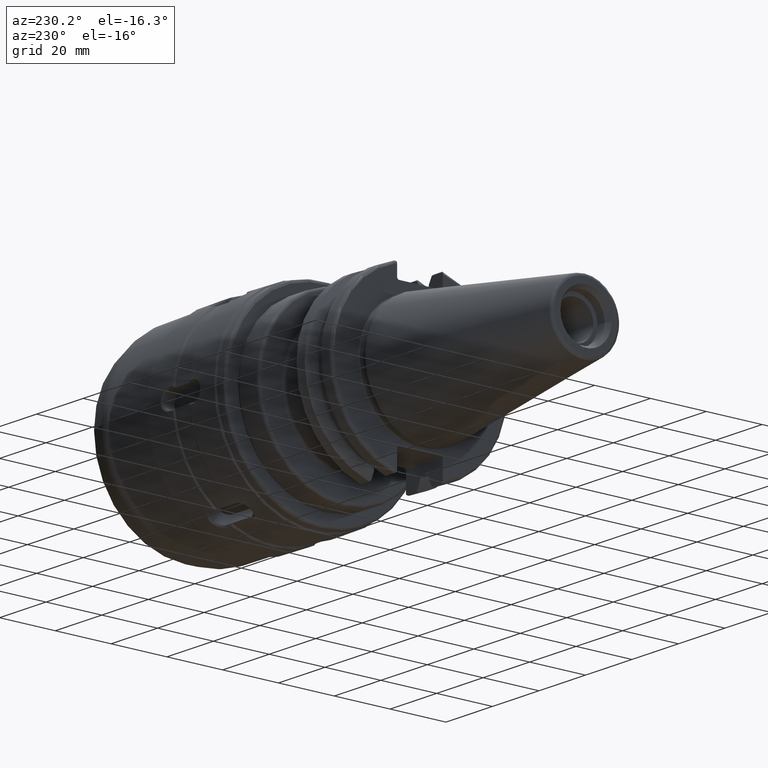
[diagram: clean part render]
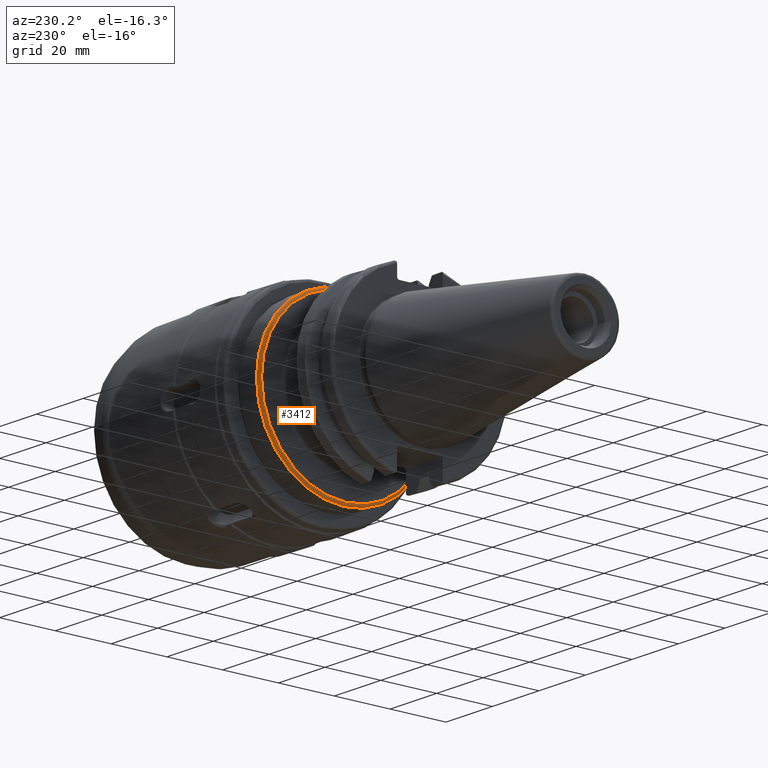
[diagram: same view with one face highlighted and labeled with its STEP entity id]
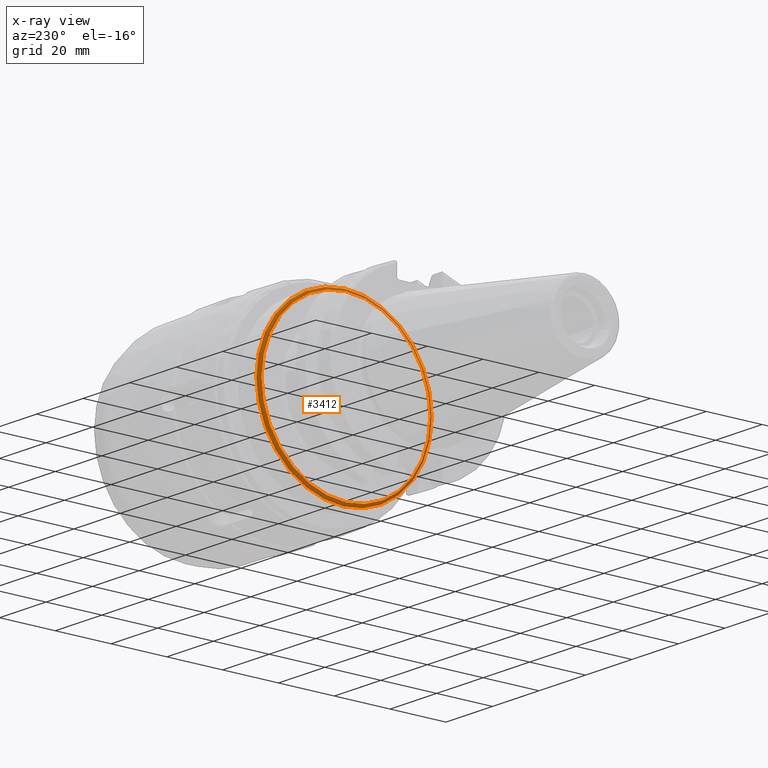
[diagram: x-ray of the same camera — body ghosted, the highlighted face saturated]
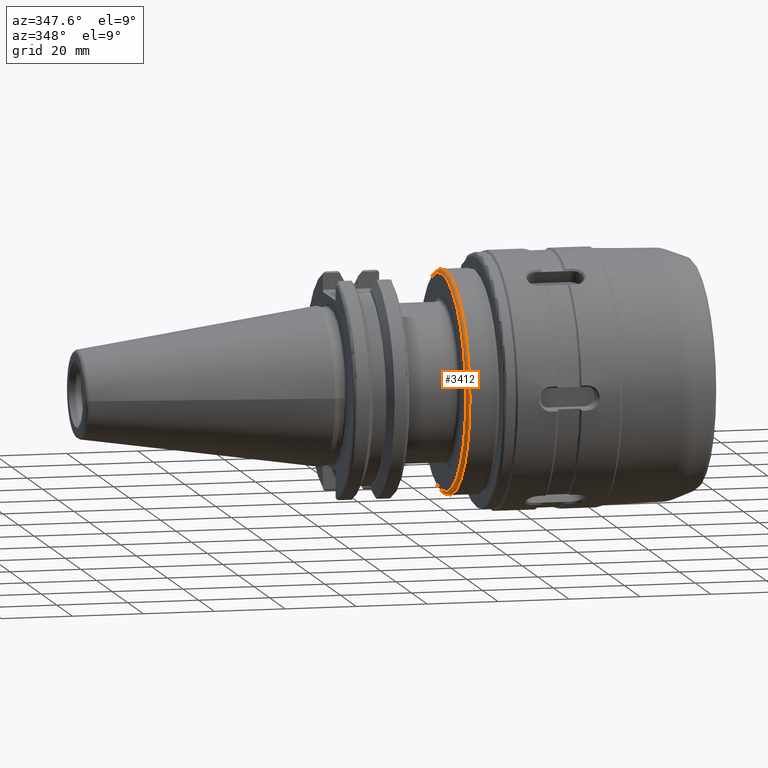
[diagram: same view with one face highlighted and labeled with its STEP entity id]
A machine part, auxiliary view. The second image highlights one B-rep face of the part: STEP entity #3412.
The next image is the same camera in x-ray: the body ghosted, the highlighted face saturated — about 20% of this face is hidden behind the body in this view.
A second angle (auxiliary view) of the same face is appended — the face is thin or edge-on in the first view.
In plain terms, the highlighted toroidal blend (fillet) surface has major radius 30.25 mm and minor (blend) radius 1 mm.
Its self-contained STEP definition (entity closure, byte-faithful):
#126=TOROIDAL_SURFACE('',#3696,30.25,1.);
#305=FACE_OUTER_BOUND('',#501,.T.);
#501=EDGE_LOOP('',(#2339,#2340,#2341,#2342,#2343,#2344));
#1203=CIRCLE('',#3691,31.25);
#1204=CIRCLE('',#3692,31.25);
#1207=CIRCLE('',#3697,30.25);
#1208=CIRCLE('',#3698,1.);
#1209=CIRCLE('',#3699,30.25);
#1413=VERTEX_POINT('',#5143);
#1414=VERTEX_POINT('',#5144);
#1417=VERTEX_POINT('',#5154);
#1418=VERTEX_POINT('',#5155);
#1782=EDGE_CURVE('',#1413,#1414,#1203,.T.);
#1783=EDGE_CURVE('',#1414,#1413,#1204,.T.);
#1787=EDGE_CURVE('',#1417,#1418,#1207,.T.);
#1788=EDGE_CURVE('',#1418,#1414,#1208,.T.);
#1789=EDGE_CURVE('',#1418,#1417,#1209,.T.);
#2339=ORIENTED_EDGE('',*,*,#1787,.T.);
#2340=ORIENTED_EDGE('',*,*,#1788,.T.);
#2341=ORIENTED_EDGE('',*,*,#1783,.T.);
#2342=ORIENTED_EDGE('',*,*,#1782,.T.);
#2343=ORIENTED_EDGE('',*,*,#1788,.F.);
#2344=ORIENTED_EDGE('',*,*,#1789,.T.);
#3412=ADVANCED_FACE('',(#305),#126,.T.);
#3691=AXIS2_PLACEMENT_3D('',#5145,#4116,#4117);
#3692=AXIS2_PLACEMENT_3D('',#5146,#4118,#4119);
#3696=AXIS2_PLACEMENT_3D('',#5153,#4127,#4128);
#3697=AXIS2_PLACEMENT_3D('',#5156,#4129,#4130);
#3698=AXIS2_PLACEMENT_3D('',#5157,#4131,#4132);
#3699=AXIS2_PLACEMENT_3D('',#5158,#4133,#4134);
#4116=DIRECTION('center_axis',(-1.,0.,0.));
#4117=DIRECTION('ref_axis',(0.,1.22464679914735E-16,-1.));
#4118=DIRECTION('center_axis',(-1.,0.,0.));
#4119=DIRECTION('ref_axis',(0.,1.22464679914735E-16,-1.));
#4127=DIRECTION('center_axis',(-1.,0.,0.));
#4128=DIRECTION('ref_axis',(0.,0.,1.));
#4129=DIRECTION('center_axis',(1.,0.,0.));
#4130=DIRECTION('ref_axis',(0.,1.22464679914735E-16,-1.));
#4131=DIRECTION('center_axis',(0.,-1.,1.22464679914735E-16));
#4132=DIRECTION('ref_axis',(0.,-1.22464679914735E-16,-1.));
#4133=DIRECTION('center_axis',(1.,0.,0.));
#4134=DIRECTION('ref_axis',(0.,1.22464679914735E-16,-1.));
#5143=CARTESIAN_POINT('',(36.,0.,31.25));
#5144=CARTESIAN_POINT('',(36.,-3.82702124733548E-15,-31.25));
#5145=CARTESIAN_POINT('Origin',(36.,0.,0.));
#5146=CARTESIAN_POINT('Origin',(36.,0.,0.));
#5153=CARTESIAN_POINT('Origin',(36.,0.,0.));
#5154=CARTESIAN_POINT('',(35.,-7.40911313484149E-15,30.25));
#5155=CARTESIAN_POINT('',(35.,-3.70455656742074E-15,-30.25));
#5156=CARTESIAN_POINT('Origin',(35.,0.,0.));
#5157=CARTESIAN_POINT('Origin',(36.,-3.70455656742074E-15,-30.25));
#5158=CARTESIAN_POINT('Origin',(35.,0.,0.));